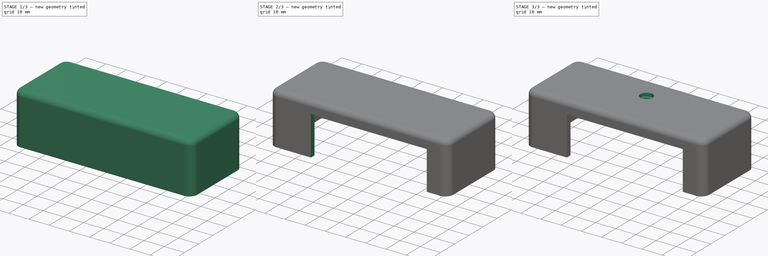
[diagram: build sequence overview — one tinted view per stage of 3, left to right]
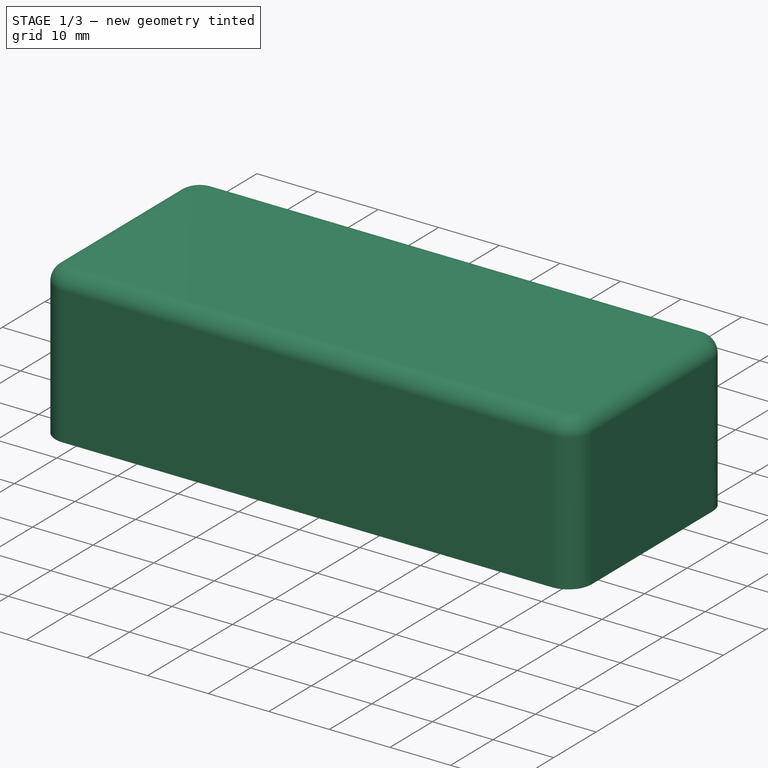
[diagram: stage 1 of 3 — iso view after this stage's code; geometry added in this stage tinted green]
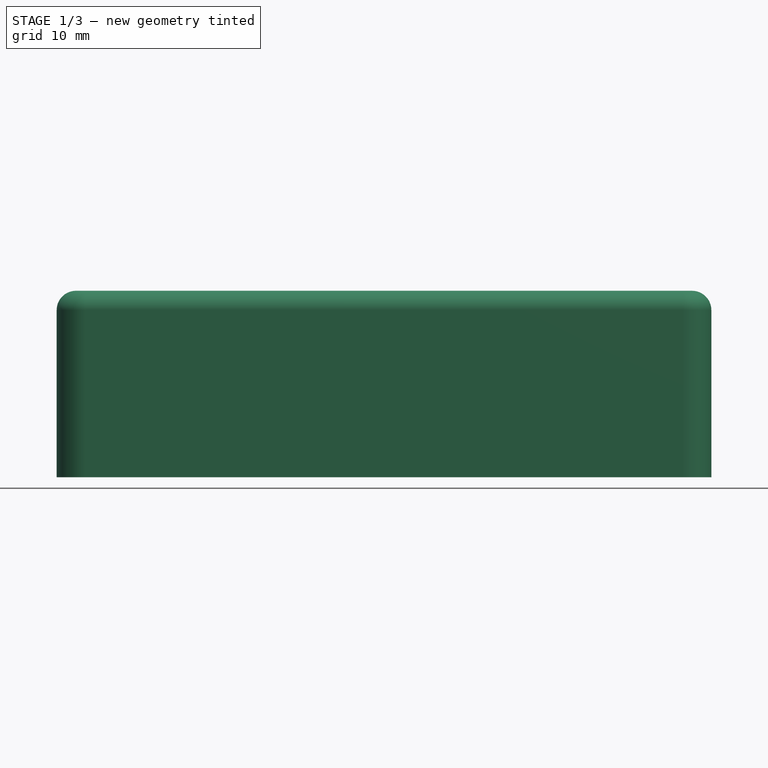
[diagram: stage 1 of 3 — front view after this stage's code; geometry added in this stage tinted green]
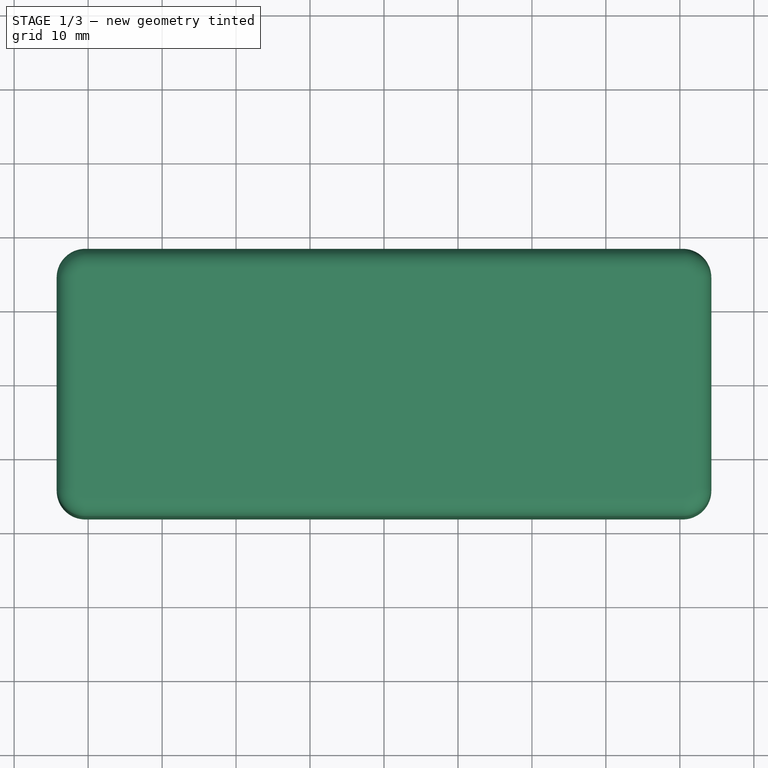
[diagram: stage 1 of 3 — top view after this stage's code; geometry added in this stage tinted green]
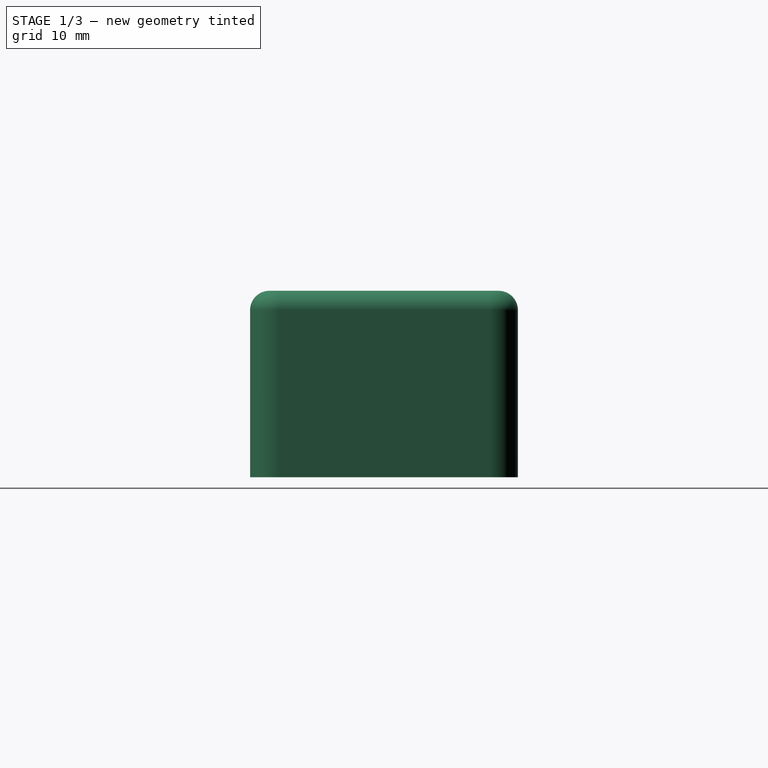
[diagram: stage 1 of 3 — right view after this stage's code; geometry added in this stage tinted green]
FCSTD DOCUMENT  (FreeCAD 0.21R33771 (Git))
Label: T568A_to_RJ11_adapter_cover
License: All rights reserved
LicenseURL: http://en.wikipedia.org/wiki/All_rights_reserved
objects: Sketcher::SketchObject×4, PartDesign::Pocket×2, PartDesign::Pad×1, PartDesign::Thickness×1, PartDesign::Hole×1, PartDesign::Body×1
note: 15 computed .brp shape members not serialized (recipe doc carries the construction recipe); baked Part::Feature solids carry a one-line shape summary decoded from their .brp

FEATURE [Sketcher::SketchObject] Sketch  label="CoverOutlineSketch"
  FullyConstrained = true
  MapMode = 5
  Support = -> [XY_Plane]
  sketch-geometry (10):
    g0: ArcOfCircle CenterX=-40.38 CenterY=14.23 CenterZ=0 NormalX=0 NormalY=0 NormalZ=1 AngleXU=0 Radius=1.27 StartAngle=1.5708 EndAngle=3.14159
    g1: LineSegment StartX=-40.38 StartY=15.5 StartZ=0 EndX=40.38 EndY=15.5 EndZ=0
    g2: ArcOfCircle CenterX=40.38 CenterY=14.23 CenterZ=0 NormalX=0 NormalY=0 NormalZ=1 AngleXU=0 Radius=1.27 StartAngle=-4.8406e-12 EndAngle=1.5708
    g3: LineSegment StartX=41.65 StartY=14.23 StartZ=0 EndX=41.65 EndY=-14.23 EndZ=0
    g4: ArcOfCircle CenterX=40.38 CenterY=-14.23 CenterZ=0 NormalX=0 NormalY=0 NormalZ=1 AngleXU=0 Radius=1.27 StartAngle=4.71239 EndAngle=6.28319
    g5: LineSegment StartX=40.38 StartY=-15.5 StartZ=0 EndX=-40.38 EndY=-15.5 EndZ=0
    g6: ArcOfCircle CenterX=-40.38 CenterY=-14.23 CenterZ=0 NormalX=0 NormalY=0 NormalZ=1 AngleXU=0 Radius=1.27 StartAngle=3.14159 EndAngle=4.71239
    g7: LineSegment StartX=-41.65 StartY=-14.23 StartZ=0 EndX=-41.65 EndY=14.23 EndZ=0
    g8: GeomPoint X=-41.65 Y=15.5 Z=0
    g9: GeomPoint X=41.65 Y=-15.5 Z=0
  constraints (23):
    c: Tangent(g0,g1) = 1.5708
    c: Tangent(g1,g2) = 1.5708
    c: Tangent(g2,g3) = 1.5708
    c: Tangent(g3,g4) = 1.5708
    c: Tangent(g4,g5) = 1.5708
    c: Tangent(g5,g6) = 1.5708
    c: Tangent(g6,g7) = 1.5708
    c: Tangent(g7,g0) = 1.5708
    c: Horizontal(g1)
    c: Horizontal(g5)
    c: Vertical(g3)
    c: Vertical(g7)
    c: Equal(g0,g2)
    c: Equal(g2,g4)
    c: Equal(g4,g6)
    c: PointOnObject(g8,g1)
    c: PointOnObject(g8,g7)
    c: PointOnObject(g9,g3)
    c: PointOnObject(g9,g5)
    c: DistanceX(g0,g2) = 83.3
    c: Radius(g2) = 1.27
    c: DistanceY(g5,g0) = 31
    c: Symmetric(g8,g9,g-1)
FEATURE [PartDesign::Pad] Pad  label="CoverOutlinePad"
  Direction = (0,0,1)
  Length = 22.6
  Length2 = 10
  Profile = -> Sketch
  ReferenceAxis = -> Sketch [N_Axis]
  Type = 0
FEATURE [PartDesign::Thickness] Thickness  label="CoverOutlineThickness"
  Base = -> Pad [Face9]
  BaseFeature = -> Pad
  Intersection = false
  Join = 0
  Mode = 0
  SupportTransform = false
  Value = 2.6
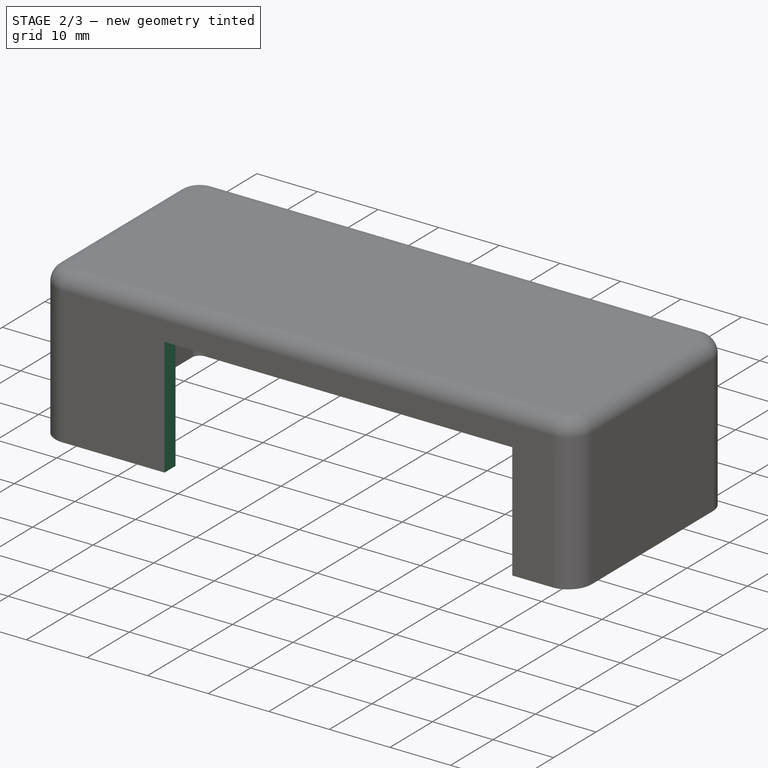
[diagram: stage 2 of 3 — iso view after this stage's code; geometry added in this stage tinted green]
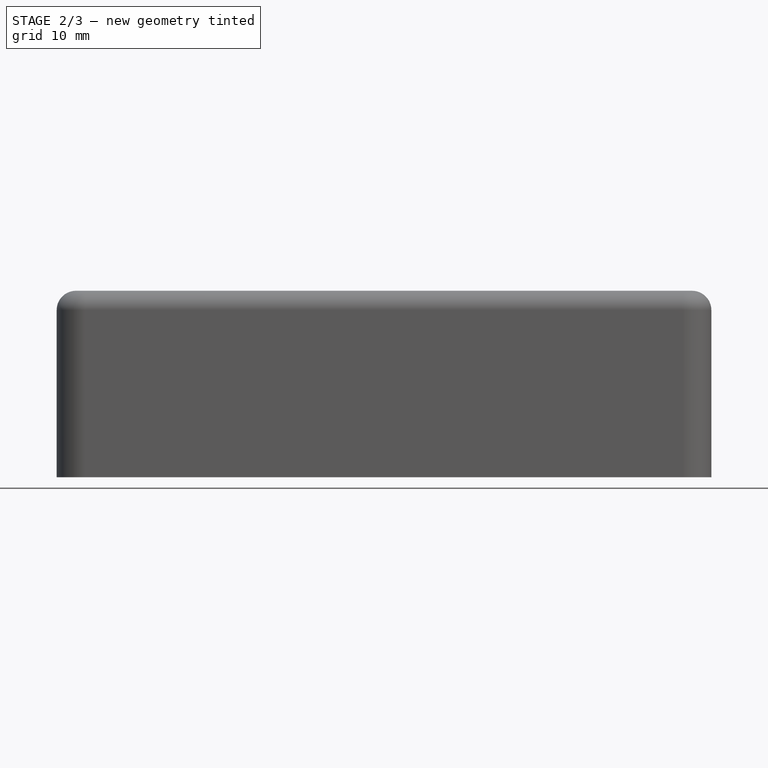
[diagram: stage 2 of 3 — front view after this stage's code; geometry added in this stage tinted green]
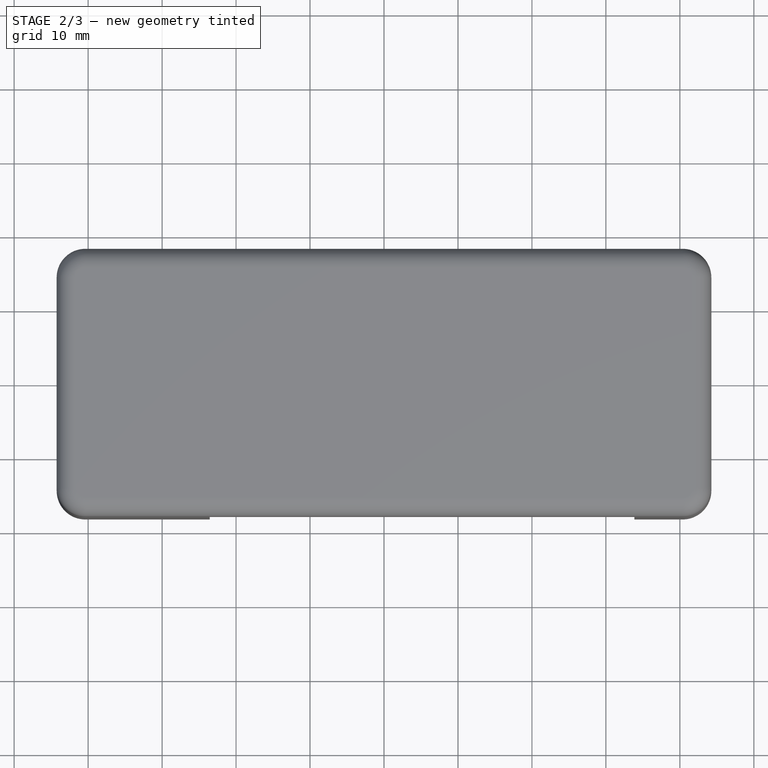
[diagram: stage 2 of 3 — top view after this stage's code; geometry added in this stage tinted green]
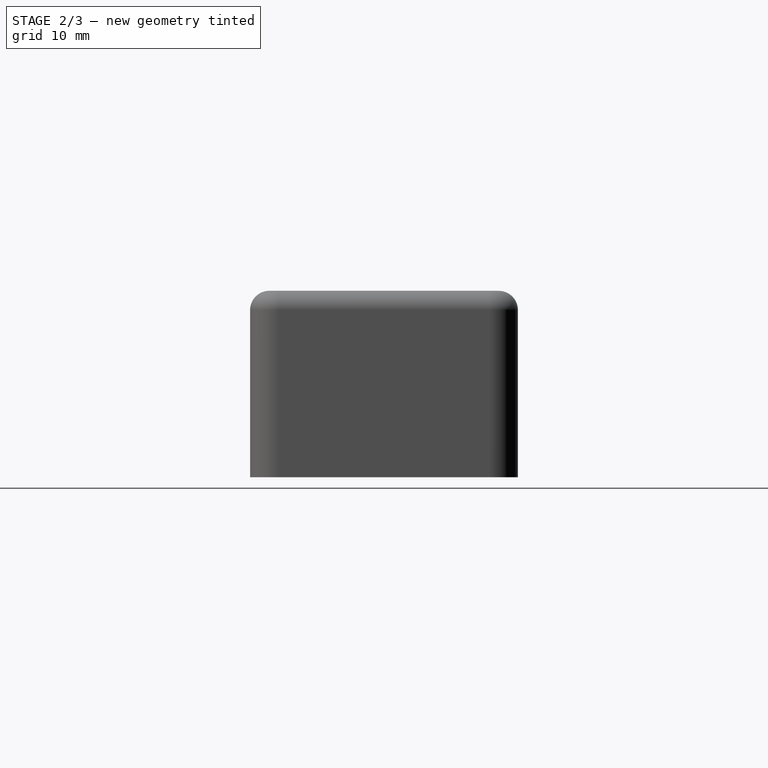
[diagram: stage 2 of 3 — right view after this stage's code; geometry added in this stage tinted green]
FEATURE [Sketcher::SketchObject] Sketch001  label="RJ11Sketch"
  AttachmentOffset = pos=(0,0,18.1) rot=(0,0,1;0rad)
  ExternalGeometry = -> [Thickness]
  FullyConstrained = true
  MapMode = 5
  Placement = pos=(0,-18.1,-4e-15) rot=(1,0,0;1.5708rad)
  Support = -> [XZ_Plane]
  sketch-geometry (4):
    g0: LineSegment StartX=-23.55 StartY=0 StartZ=0 EndX=33.85 EndY=0 EndZ=0
    g1: LineSegment StartX=33.85 StartY=0 StartZ=0 EndX=33.85 EndY=19.5 EndZ=0
    g2: LineSegment StartX=33.85 StartY=19.5 StartZ=0 EndX=-23.55 EndY=19.5 EndZ=0
    g3: LineSegment StartX=-23.55 StartY=19.5 StartZ=0 EndX=-23.55 EndY=0 EndZ=0
  constraints (12):
    c: Coincident(g0,g1)
    c: Coincident(g1,g2)
    c: Coincident(g2,g3)
    c: Coincident(g3,g0)
    c: Horizontal(g0)
    c: Horizontal(g2)
    c: Vertical(g1)
    c: Vertical(g3)
    c: PointOnObject(g0,g-1)
    c: DistanceX(g2,g2) = 57.4
    c: DistanceX(g-3,g0) = 20.7
    c: DistanceY(g1,g1) = 19.5
FEATURE [Sketcher::SketchObject] Sketch002  label="8P8CSketch"
  AttachmentOffset = pos=(0,0,-44.25) rot=(0,0,1;0rad)
  FullyConstrained = true
  MapMode = 5
  Placement = pos=(-44.25,9.8e-15,-9.8e-15) rot=(0.57735,0.57735,0.57735;2.0944rad)
  Support = -> [YZ_Plane]
  sketch-geometry (4):
    g0: LineSegment StartX=-7.85 StartY=20.5 StartZ=0 EndX=7.85 EndY=20.5 EndZ=0
    g1: LineSegment StartX=7.85 StartY=20.5 StartZ=0 EndX=7.85 EndY=0 EndZ=0
    g2: LineSegment StartX=7.85 StartY=0 StartZ=0 EndX=-7.85 EndY=0 EndZ=0
    g3: LineSegment StartX=-7.85 StartY=0 StartZ=0 EndX=-7.85 EndY=20.5 EndZ=0
  constraints (11):
    c: Coincident(g0,g1)
    c: Coincident(g1,g2)
    c: Coincident(g2,g3)
    c: Coincident(g3,g0)
    c: Horizontal(g2)
    c: Vertical(g1)
    c: Vertical(g3)
    c: PointOnObject(g1,g-1)
    c: DistanceX(g0,g0) = 15.7
    c: Symmetric(g0,g0,g-2)
    c: DistanceY(g1,g1) = 20.5
FEATURE [Sketcher::SketchObject] Sketch003  label="CoverHoleSketch"
  AttachmentOffset = pos=(0,0,25.2) rot=(0,0,1;0rad)
  FullyConstrained = true
  MapMode = 5
  Placement = pos=(0,0,25.2) rot=(0,0,1;0rad)
  Support = -> [XY_Plane]
  sketch-geometry (1):
    g0: Circle CenterX=0 CenterY=4.592 CenterZ=0 NormalX=0 NormalY=0 NormalZ=1 AngleXU=0 Radius=1.6
  constraints (3):
    c: PointOnObject(g0,g-2)
    c: DistanceY(g-1,g0) = 4.592
    c: Diameter(g0) = 3.2
FEATURE [PartDesign::Pocket] Pocket  label="RJ11Pocket"
  BaseFeature = -> Thickness
  Direction = (0,1,2e-16)
  Length = 5
  Length2 = 5
  Profile = -> Sketch001
  ReferenceAxis = -> Sketch001 [N_Axis]
  Type = 0
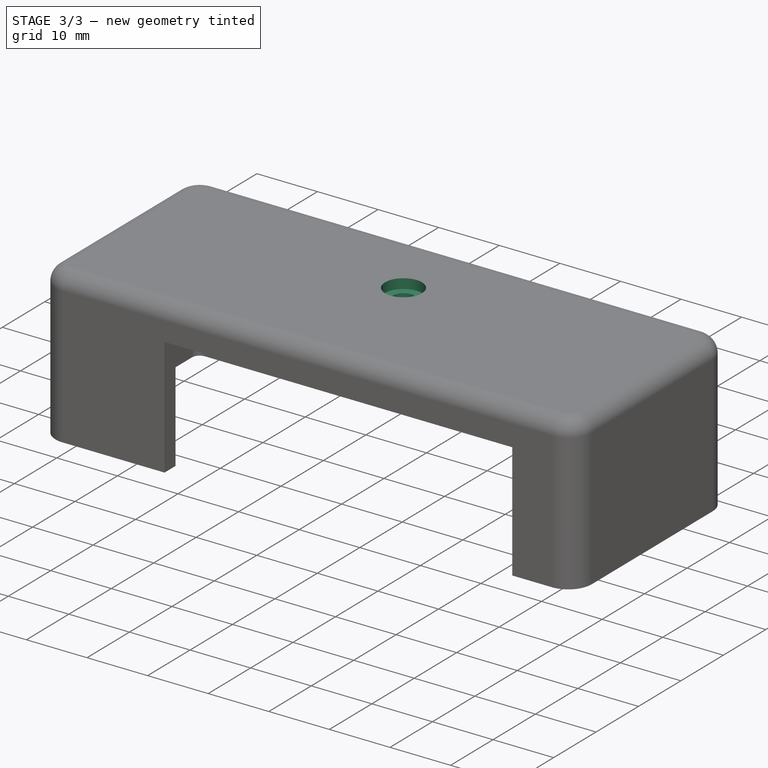
[diagram: stage 3 of 3 — iso view after this stage's code; geometry added in this stage tinted green]
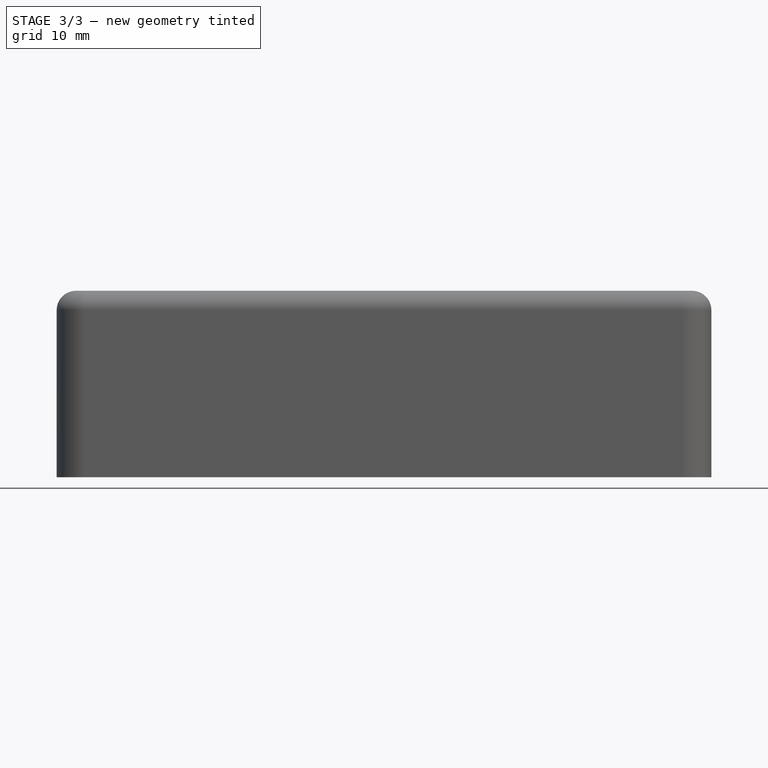
[diagram: stage 3 of 3 — front view after this stage's code; geometry added in this stage tinted green]
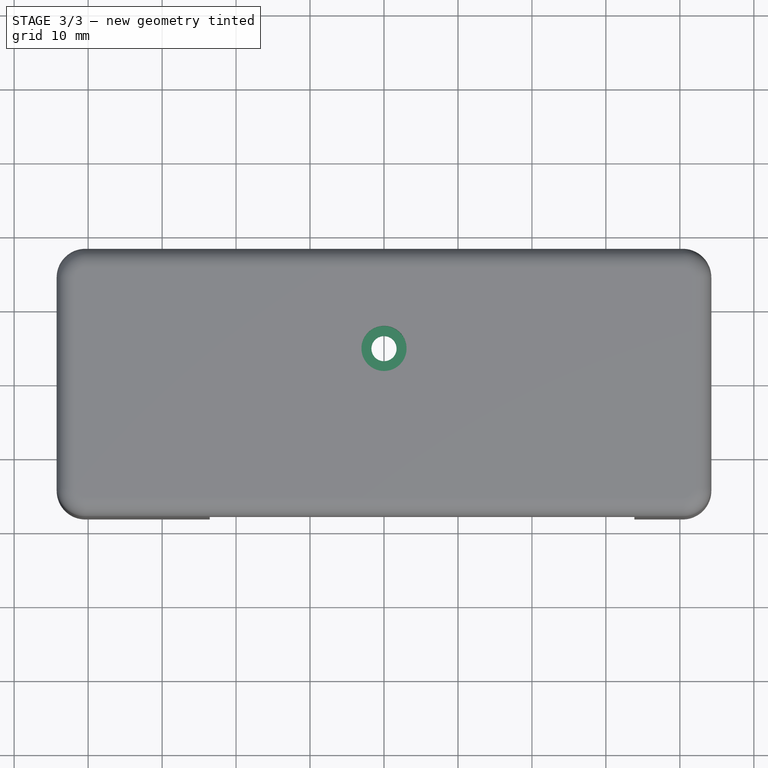
[diagram: stage 3 of 3 — top view after this stage's code; geometry added in this stage tinted green]
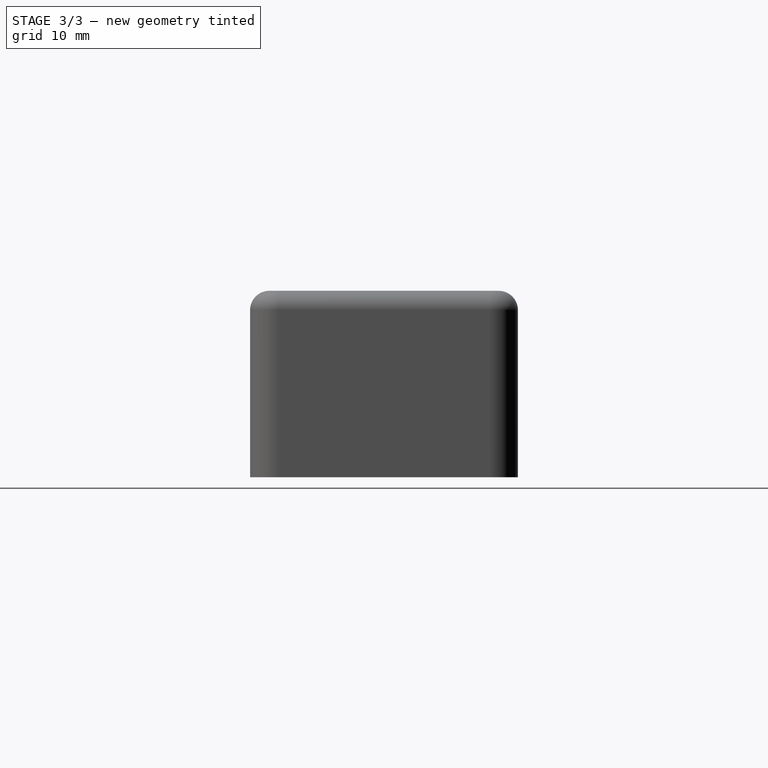
[diagram: stage 3 of 3 — right view after this stage's code; geometry added in this stage tinted green]
FEATURE [PartDesign::Pocket] Pocket001  label="8P8CPocket"
  BaseFeature = -> Pocket
  Direction = (-1,2e-16,-3e-16)
  Length = 5
  Length2 = 5
  Profile = -> Sketch002
  ReferenceAxis = -> Sketch002 [N_Axis]
  Reversed = true
  Type = 0
FEATURE [PartDesign::Hole] Hole  label="CoverHole"
  BaseFeature = -> Pocket001
  CustomThreadClearance = 0
  Depth = 25
  DepthType = 0
  Diameter = 3.4
  DrillForDepth = false
  DrillPoint = 1
  DrillPointAngle = 118
  HoleCutCountersinkAngle = 90
  HoleCutCustomValues = false
  HoleCutDepth = 1.6
  HoleCutDiameter = 6.1
  HoleCutType = 1
  ModelThread = false
  Profile = -> Sketch003
  Tapered = false
  TaperedAngle = 90
  ThreadClass = 0
  ThreadDepth = 25
  ThreadDepthType = 0
  ThreadDirection = 0
  ThreadFit = 0
  ThreadSize = 9
  ThreadType = 1
  Threaded = false
  UseCustomThreadClearance = false
FEATURE [PartDesign::Body] Body
  Group = -> [Sketch,Pad,Thickness,Sketch001,Sketch002,Sketch003,Pocket,Pocket001,Hole]
  Origin = -> Origin
  Tip = -> Hole
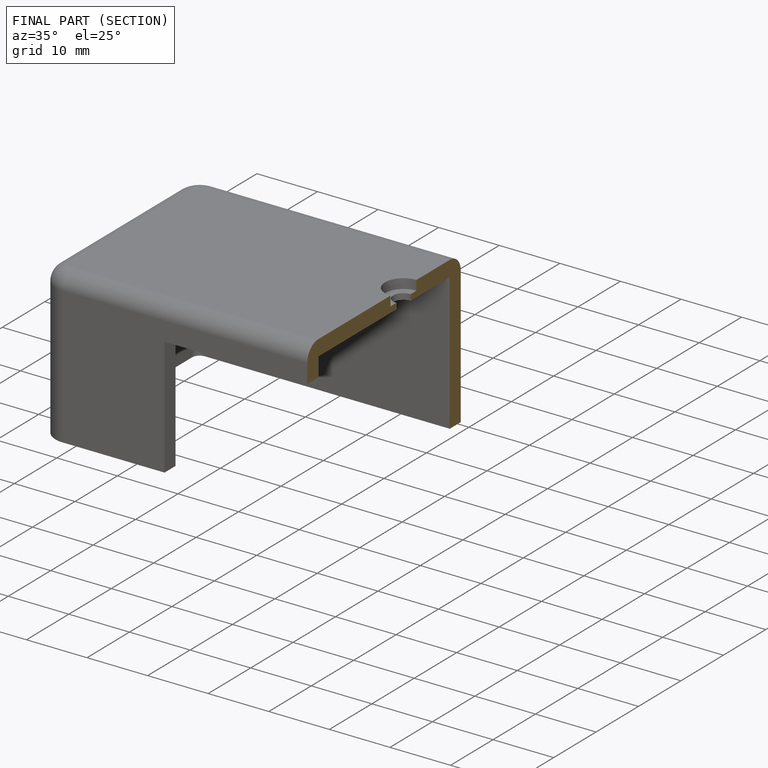
[diagram: finished part — half-section view (interior)]
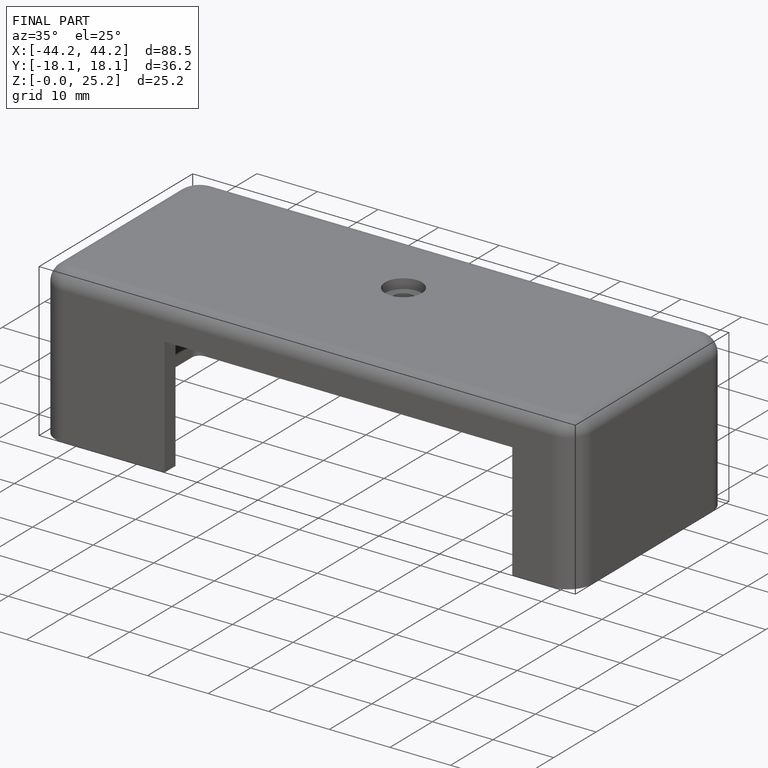
[diagram: finished part — iso view with bounding-box wireframe]
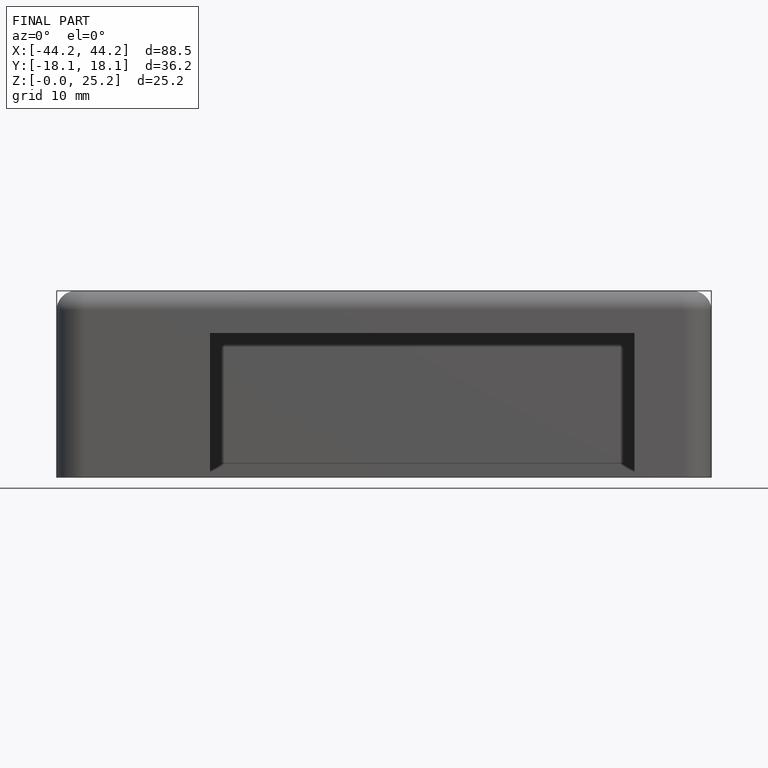
[diagram: finished part — front view with bounding-box wireframe]
